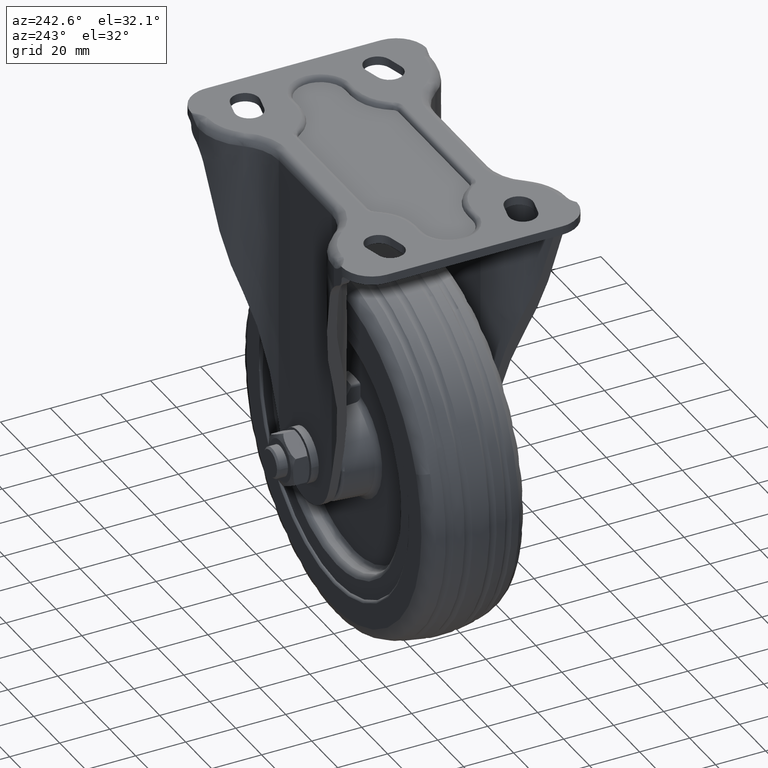
[diagram: clean part render]
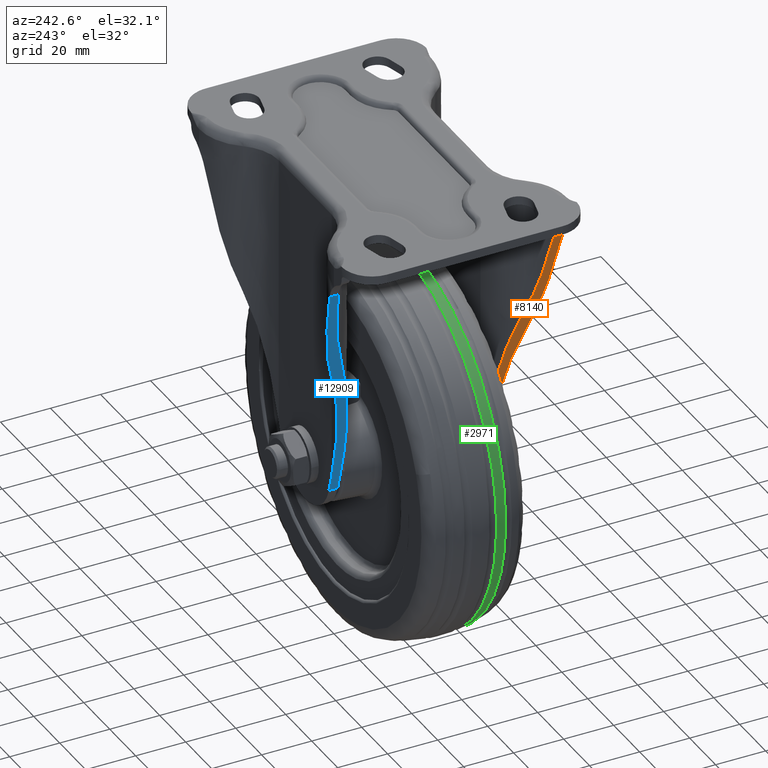
[diagram: same view with three faces highlighted in distinct colors, each labeled with its STEP entity id]
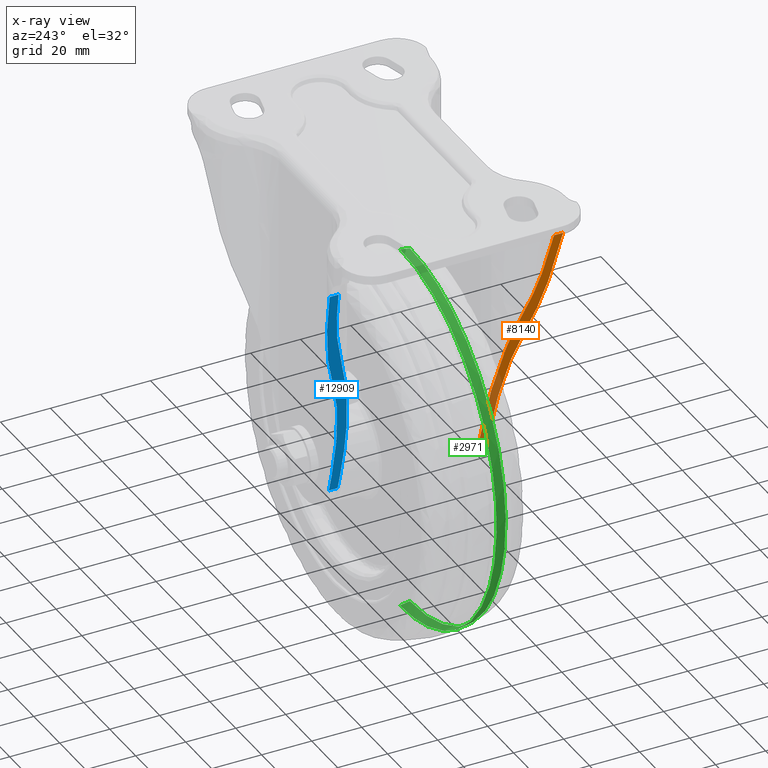
[diagram: x-ray of the same camera — body ghosted, the three highlighted faces saturated]
A machine part, auxiliary view with three faces highlighted in distinct colors.
The next image is the same camera in x-ray (body ghosted, the three faces saturated) — at least one of them is partly hidden behind the body in this view.
Their STEP definitions:

[orange] entity #8140 — the highlighted face is a freeform B-spline surface patch.
#8045=CARTESIAN_POINT('',(-49.594330046270152,-47.583668895438059,101.817506678719890));
#8046=CARTESIAN_POINT('',(-16.743273441587160,-47.583668895438059,-10.434331262693480));
#8047=CARTESIAN_POINT('',(-49.594330046270152,-27.068332063002170,101.817506678719890));
#8048=CARTESIAN_POINT('',(-16.743273441587160,-27.068332063002170,-10.434331262693480));
#8049=B_SPLINE_SURFACE_WITH_KNOTS('',1,1,((#8045,#8047),(#8046,#8048)),.UNSPECIFIED.,.F.,.F.,.U.,(2,2),(2,2),(0.0,116.960108760506100),(0.0,20.515336832435889),.UNSPECIFIED.);
#8050=CARTESIAN_POINT('',(-20.381176492475149,-31.500000000000000,1.996358825266940));
#8051=VERTEX_POINT('',#8050);
#8052=CARTESIAN_POINT('',(-34.609647070861350,-38.475000000000001,50.614946432323997));
#8053=VERTEX_POINT('',#8052);
#8054=CARTESIAN_POINT('',(-20.381176492475149,-31.500000000000000,1.996358825266929));
#8055=CARTESIAN_POINT('',(-29.205034215505297,-31.500000000000004,32.147420907162712));
#8056=CARTESIAN_POINT('',(-34.609647070861271,-38.474999999999987,50.614946432323890));
#8064=(BOUNDED_CURVE()B_SPLINE_CURVE(2,(#8054,#8055,#8056),.UNSPECIFIED.,.F.,.U.)CURVE()GEOMETRIC_REPRESENTATION_ITEM()QUASI_UNIFORM_CURVE()RATIONAL_B_SPLINE_CURVE((1.0,0.897914249803397,1.0))REPRESENTATION_ITEM(''));
#8065=EDGE_CURVE('',#8051,#8053,#8064,.T.);
#8066=ORIENTED_EDGE('',*,*,#8065,.T.);
#8067=CARTESIAN_POINT('',(-48.102458103967301,-46.652001458725898,96.719789578988198));
#8068=VERTEX_POINT('',#8067);
#8069=CARTESIAN_POINT('',(-48.102458103967301,-46.652001458725898,96.719789578988198));
#8070=CARTESIAN_POINT('',(-39.785597795967618,-45.154896835133819,68.301135006987423));
#8071=CARTESIAN_POINT('',(-34.609647070861399,-38.475000000000001,50.614946432324039));
#8079=(BOUNDED_CURVE()B_SPLINE_CURVE(2,(#8069,#8070,#8071),.UNSPECIFIED.,.F.,.U.)CURVE()GEOMETRIC_REPRESENTATION_ITEM()QUASI_UNIFORM_CURVE()RATIONAL_B_SPLINE_CURVE((1.0,0.933501997935313,1.0))REPRESENTATION_ITEM(''));
#8080=EDGE_CURVE('',#8068,#8053,#8079,.T.);
#8081=ORIENTED_EDGE('',*,*,#8080,.F.);
#8082=CARTESIAN_POINT('',(-48.102458103967301,-43.084777221980652,96.719789578988198));
#8083=VERTEX_POINT('',#8082);
#8084=CARTESIAN_POINT('',(-48.102458103967301,-46.652001458725898,96.719789578988198));
#8085=CARTESIAN_POINT('',(-48.102458103967301,-43.084777221980652,96.719789578988198));
#8086=QUASI_UNIFORM_CURVE('',1,(#8084,#8085),.UNSPECIFIED.,.F.,.U.);
#8087=EDGE_CURVE('',#8068,#8083,#8086,.T.);
#8088=ORIENTED_EDGE('',*,*,#8087,.T.);
#8089=CARTESIAN_POINT('',(-37.376294127769853,-36.331249999999997,60.068560689252202));
#8090=VERTEX_POINT('',#8089);
#8091=CARTESIAN_POINT('',(-48.102458103967301,-43.084777221980652,96.719789578988198));
#8092=CARTESIAN_POINT('',(-41.508084074730156,-41.663590289922517,74.186858956347322));
#8093=CARTESIAN_POINT('',(-37.376294127769917,-36.331250000000153,60.068560689252159));
#8101=(BOUNDED_CURVE()B_SPLINE_CURVE(2,(#8091,#8092,#8093),.UNSPECIFIED.,.F.,.U.)CURVE()GEOMETRIC_REPRESENTATION_ITEM()QUASI_UNIFORM_CURVE()RATIONAL_B_SPLINE_CURVE((1.0,0.939491211954343,1.0))REPRESENTATION_ITEM(''));
#8102=EDGE_CURVE('',#8083,#8090,#8101,.T.);
#8103=ORIENTED_EDGE('',*,*,#8102,.T.);
#8104=CARTESIAN_POINT('',(-20.381176492475149,-28.0,1.996358825266830));
#8105=VERTEX_POINT('',#8104);
#8106=CARTESIAN_POINT('',(-20.381176492475110,-28.0,1.996358825266796));
#8107=CARTESIAN_POINT('',(-30.920784328316707,-28.000000000000007,38.010127423086885));
#8108=CARTESIAN_POINT('',(-37.376294127769683,-36.331249999999990,60.068560689251633));
#8116=(BOUNDED_CURVE()B_SPLINE_CURVE(2,(#8106,#8107,#8108),.UNSPECIFIED.,.F.,.U.)CURVE()GEOMETRIC_REPRESENTATION_ITEM()QUASI_UNIFORM_CURVE()RATIONAL_B_SPLINE_CURVE((1.0,0.897914249803401,1.0))REPRESENTATION_ITEM(''));
#8117=EDGE_CURVE('',#8105,#8090,#8116,.T.);
#8118=ORIENTED_EDGE('',*,*,#8117,.F.);
#8119=CARTESIAN_POINT('',(-18.235146394250201,-28.0,-5.336611486835760));
#8120=VERTEX_POINT('',#8119);
#8121=CARTESIAN_POINT('',(-18.235146394250201,-28.0,-5.336611486835760));
#8122=CARTESIAN_POINT('',(-20.381176492475149,-28.0,1.996358825266830));
#8123=QUASI_UNIFORM_CURVE('',1,(#8121,#8122),.UNSPECIFIED.,.F.,.U.);
#8124=EDGE_CURVE('',#8120,#8105,#8123,.T.);
#8125=ORIENTED_EDGE('',*,*,#8124,.F.);
#8126=CARTESIAN_POINT('',(-18.235146394250201,-31.500000000000000,-5.336611486835760));
#8127=VERTEX_POINT('',#8126);
#8128=CARTESIAN_POINT('',(-18.235146394250201,-31.500000000000000,-5.336611486835760));
#8129=CARTESIAN_POINT('',(-18.235146394250201,-28.0,-5.336611486835760));
#8130=QUASI_UNIFORM_CURVE('',1,(#8128,#8129),.UNSPECIFIED.,.F.,.U.);
#8131=EDGE_CURVE('',#8127,#8120,#8130,.T.);
#8132=ORIENTED_EDGE('',*,*,#8131,.F.);
#8133=CARTESIAN_POINT('',(-20.381176492475149,-31.500000000000000,1.996358825266940));
#8134=CARTESIAN_POINT('',(-18.235146394250201,-31.500000000000000,-5.336611486835760));
#8135=QUASI_UNIFORM_CURVE('',1,(#8133,#8134),.UNSPECIFIED.,.F.,.U.);
#8136=EDGE_CURVE('',#8051,#8127,#8135,.T.);
#8137=ORIENTED_EDGE('',*,*,#8136,.F.);
#8138=EDGE_LOOP('',(#8066,#8081,#8088,#8103,#8118,#8125,#8132,#8137));
#8139=FACE_OUTER_BOUND('',#8138,.T.);
#8140=ADVANCED_FACE('',(#8139),#8049,.F.);

[blue] entity #12909 — the highlighted face is a freeform B-spline surface patch.
#8953=CARTESIAN_POINT('',(-37.376294127769853,36.331249999999997,60.068560689252003));
#8954=VERTEX_POINT('',#8953);
#8955=CARTESIAN_POINT('',(-48.102458103967301,43.084777221980652,96.719789578988198));
#8956=VERTEX_POINT('',#8955);
#8957=CARTESIAN_POINT('',(-37.376294127769853,36.331249999999997,60.068560689252003));
#8958=CARTESIAN_POINT('',(-41.508084000457508,41.663590194069009,74.186858702558197));
#8959=CARTESIAN_POINT('',(-48.102457894710817,43.084777176882717,96.719789640228171));
#8967=(BOUNDED_CURVE()B_SPLINE_CURVE(2,(#8957,#8958,#8959),.UNSPECIFIED.,.F.,.U.)CURVE()GEOMETRIC_REPRESENTATION_ITEM()QUASI_UNIFORM_CURVE()RATIONAL_B_SPLINE_CURVE((1.0,0.939491213936277,1.0))REPRESENTATION_ITEM(''));
#8968=EDGE_CURVE('',#8954,#8956,#8967,.T.);
#9034=CARTESIAN_POINT('',(-20.381176492475149,28.0,1.996358825266940));
#9035=VERTEX_POINT('',#9034);
#9036=CARTESIAN_POINT('',(-37.376294127769853,36.331249999999997,60.068560689252003));
#9037=CARTESIAN_POINT('',(-30.920784328316838,28.0,38.010127423087290));
#9038=CARTESIAN_POINT('',(-20.381176492475149,28.0,1.996358825266944));
#9046=(BOUNDED_CURVE()B_SPLINE_CURVE(2,(#9036,#9037,#9038),.UNSPECIFIED.,.F.,.U.)CURVE()GEOMETRIC_REPRESENTATION_ITEM()QUASI_UNIFORM_CURVE()RATIONAL_B_SPLINE_CURVE((1.0,0.897914249803397,1.0))REPRESENTATION_ITEM(''));
#9047=EDGE_CURVE('',#8954,#9035,#9046,.T.);
#9077=CARTESIAN_POINT('',(-18.235146394250201,28.0,-5.336611486835760));
#9078=VERTEX_POINT('',#9077);
#9079=CARTESIAN_POINT('',(-18.235146394250201,28.0,-5.336611486835760));
#9080=CARTESIAN_POINT('',(-20.381176492475149,28.0,1.996358825266940));
#9081=QUASI_UNIFORM_CURVE('',1,(#9079,#9080),.UNSPECIFIED.,.F.,.U.);
#9082=EDGE_CURVE('',#9078,#9035,#9081,.T.);
#12825=CARTESIAN_POINT('',(-18.235146394250201,31.500000000000000,-5.336611486835760));
#12826=VERTEX_POINT('',#12825);
#12827=CARTESIAN_POINT('',(-18.235146394250201,28.0,-5.336611486835760));
#12828=CARTESIAN_POINT('',(-18.235146394250201,31.500000000000000,-5.336611486835760));
#12829=QUASI_UNIFORM_CURVE('',1,(#12827,#12828),.UNSPECIFIED.,.F.,.U.);
#12830=EDGE_CURVE('',#9078,#12826,#12829,.T.);
#12856=CARTESIAN_POINT('',(-49.594330046270152,27.068332563287839,101.817506678719890));
#12857=CARTESIAN_POINT('',(-16.743273441587160,27.068332563287839,-10.434331262693480));
#12858=CARTESIAN_POINT('',(-49.594330046270152,47.583669395723717,101.817506678719890));
#12859=CARTESIAN_POINT('',(-16.743273441587160,47.583669395723717,-10.434331262693480));
#12860=B_SPLINE_SURFACE_WITH_KNOTS('',1,1,((#12856,#12858),(#12857,#12859)),.UNSPECIFIED.,.F.,.F.,.U.,(2,2),(2,2),(0.0,116.960108760506100),(0.0,20.515336832435889),.UNSPECIFIED.);
#12861=CARTESIAN_POINT('',(-34.609647070861449,38.475000000000001,50.614946432324487));
#12862=VERTEX_POINT('',#12861);
#12863=CARTESIAN_POINT('',(-20.381176492475149,31.500000000000000,1.996358825266830));
#12864=VERTEX_POINT('',#12863);
#12865=CARTESIAN_POINT('',(-34.609647070861449,38.475000000000001,50.614946432324487));
#12866=CARTESIAN_POINT('',(-29.205034215505474,31.499999999999996,32.147420907163337));
#12867=CARTESIAN_POINT('',(-20.381176492475149,31.500000000000000,1.996358825266944));
#12875=(BOUNDED_CURVE()B_SPLINE_CURVE(2,(#12865,#12866,#12867),.UNSPECIFIED.,.F.,.U.)CURVE()GEOMETRIC_REPRESENTATION_ITEM()QUASI_UNIFORM_CURVE()RATIONAL_B_SPLINE_CURVE((1.0,0.897914249803395,1.0))REPRESENTATION_ITEM(''));
#12876=EDGE_CURVE('',#12862,#12864,#12875,.T.);
#12877=ORIENTED_EDGE('',*,*,#12876,.T.);
#12878=CARTESIAN_POINT('',(-18.235146394250201,31.500000000000000,-5.336611486835760));
#12879=CARTESIAN_POINT('',(-20.381176492475149,31.500000000000000,1.996358825266830));
#12880=QUASI_UNIFORM_CURVE('',1,(#12878,#12879),.UNSPECIFIED.,.F.,.U.);
#12881=EDGE_CURVE('',#12826,#12864,#12880,.T.);
#12882=ORIENTED_EDGE('',*,*,#12881,.F.);
#12883=ORIENTED_EDGE('',*,*,#12830,.F.);
#12884=ORIENTED_EDGE('',*,*,#9082,.T.);
#12885=ORIENTED_EDGE('',*,*,#9047,.F.);
#12886=ORIENTED_EDGE('',*,*,#8968,.T.);
#12887=CARTESIAN_POINT('',(-48.102458103967301,46.652001458725898,96.719789578988198));
#12888=VERTEX_POINT('',#12887);
#12889=CARTESIAN_POINT('',(-48.102458103967301,43.084777221980652,96.719789578988198));
#12890=CARTESIAN_POINT('',(-48.102458103967301,46.652001458725898,96.719789578988198));
#12891=QUASI_UNIFORM_CURVE('',1,(#12889,#12890),.UNSPECIFIED.,.F.,.U.);
#12892=EDGE_CURVE('',#8956,#12888,#12891,.T.);
#12893=ORIENTED_EDGE('',*,*,#12892,.T.);
#12894=CARTESIAN_POINT('',(-34.609647070861449,38.475000000000001,50.614946432324487));
#12895=CARTESIAN_POINT('',(-39.785597721245566,45.154896738700209,68.301134751662673));
#12896=CARTESIAN_POINT('',(-48.102457894710810,46.652001421058003,96.719789640228143));
#12904=(BOUNDED_CURVE()B_SPLINE_CURVE(2,(#12894,#12895,#12896),.UNSPECIFIED.,.F.,.U.)CURVE()GEOMETRIC_REPRESENTATION_ITEM()QUASI_UNIFORM_CURVE()RATIONAL_B_SPLINE_CURVE((1.0,0.933501999668031,1.0))REPRESENTATION_ITEM(''));
#12905=EDGE_CURVE('',#12862,#12888,#12904,.T.);
#12906=ORIENTED_EDGE('',*,*,#12905,.F.);
#12907=EDGE_LOOP('',(#12877,#12882,#12883,#12884,#12885,#12886,#12893,#12906));
#12908=FACE_OUTER_BOUND('',#12907,.T.);
#12909=ADVANCED_FACE('',(#12908),#12860,.F.);

[green] entity #2971 — the highlighted face is a freeform B-spline surface patch.
#2694=CARTESIAN_POINT('',(-32.313130422981637,-10.319397828722860,66.487175382998174));
#2695=VERTEX_POINT('',#2694);
#2696=CARTESIAN_POINT('',(0.0,-10.319395875026940,-73.923527432919201));
#2697=VERTEX_POINT('',#2696);
#2698=CARTESIAN_POINT('',(-32.313130422981637,-10.319397828722860,66.487175382998174));
#2699=CARTESIAN_POINT('',(-35.572561278667600,-10.319397751866401,64.903305508976686));
#2700=CARTESIAN_POINT('',(-40.959746998033722,-10.319397615973971,61.775907020564539));
#2701=CARTESIAN_POINT('',(-47.449894923314311,-10.319397431618389,56.821657093999697));
#2702=CARTESIAN_POINT('',(-53.740502634567413,-10.319397235767729,51.033054722415002));
#2703=CARTESIAN_POINT('',(-59.554266707877147,-10.319397029230720,44.215488094644670));
#2704=CARTESIAN_POINT('',(-64.685520351562005,-10.319396810577789,36.107906924867990));
#2705=CARTESIAN_POINT('',(-68.473132589959931,-10.319396617360169,28.294107697890581));
#2706=CARTESIAN_POINT('',(-71.464638078494190,-10.319396423019480,19.723464221002271));
#2707=CARTESIAN_POINT('',(-73.203255693384392,-10.319396250885630,11.339920868729211));
#2708=CARTESIAN_POINT('',(-73.982967911947227,-10.319396095516330,3.086291244583669));
#2709=CARTESIAN_POINT('',(-73.933845331358853,-10.319395942914150,-5.729058070290344));
#2710=CARTESIAN_POINT('',(-72.646361734801744,-10.319395805899200,-14.725152515521041));
#2711=CARTESIAN_POINT('',(-70.276848298095629,-10.319395691784649,-23.345743315710720));
#2712=CARTESIAN_POINT('',(-67.131405641601788,-10.319395598549240,-31.440773215317648));
#2713=CARTESIAN_POINT('',(-63.092347423454392,-10.319395530827149,-38.846212111338687));
#2714=CARTESIAN_POINT('',(-58.459271869207008,-10.319395486791169,-45.406548296807209));
#2715=CARTESIAN_POINT('',(-53.510323017312068,-10.319395460300401,-51.232970984806627));
#2716=CARTESIAN_POINT('',(-46.511999653794881,-10.319395451898560,-57.801583926432109));
#2717=CARTESIAN_POINT('',(-37.123944846816002,-10.319395480581379,-64.316456361141164));
#2718=CARTESIAN_POINT('',(-27.493463196291941,-10.319395547147010,-68.864334801831760));
#2719=CARTESIAN_POINT('',(-19.464753196590038,-10.319395624286511,-71.411497716905345));
#2720=CARTESIAN_POINT('',(-10.871423524486250,-10.319395720750171,-73.338756143432605));
#2721=CARTESIAN_POINT('',(-4.529848155820318,-10.319395806496480,-73.924027686811485));
#2722=CARTESIAN_POINT('',(0.0,-10.319395875026940,-73.923527432919201));
#2723=B_SPLINE_CURVE_WITH_KNOTS('',3,(#2698,#2699,#2700,#2701,#2702,#2703,#2704,#2705,#2706,#2707,#2708,#2709,#2710,#2711,#2712,#2713,#2714,#2715,#2716,#2717,#2718,#2719,#2720,#2721,#2722),.UNSPECIFIED.,.F.,.U.,(4,1,1,1,1,1,1,1,1,1,1,1,1,1,1,1,1,1,1,1,1,1,4),(0.000000146836015,10.871630948822510,18.637088026752281,24.461178347018290,36.497666622251558,45.427911791582567,53.193436417763849,62.512000046615157,72.607070391511613,78.819462203578681,87.361192886640865,99.009400224427978,105.998407158469110,114.152125757497100,125.023778704626200,131.236142663919990,138.225049422636290,147.931880932301710,159.968383127768900,172.393071319368400,179.770266053880310,185.206161106064910,198.795583083903010),.UNSPECIFIED.);
#2724=EDGE_CURVE('',#2695,#2697,#2723,.T.);
#2812=CARTESIAN_POINT('',(0.0,-10.319408164911909,73.923494840621004));
#2813=VERTEX_POINT('',#2812);
#2814=CARTESIAN_POINT('',(0.0,-10.319408164911909,73.923494840621004));
#2815=CARTESIAN_POINT('',(-17.012235944854485,-10.319403305891795,73.923493156986794));
#2816=CARTESIAN_POINT('',(-32.313130422981637,-10.319397828722856,66.487175382998174));
#2824=(BOUNDED_CURVE()B_SPLINE_CURVE(2,(#2814,#2815,#2816),.UNSPECIFIED.,.F.,.U.)B_SPLINE_CURVE_WITH_KNOTS((3,3),(0.500000000000000,0.574283291049692),.UNSPECIFIED.)CURVE()GEOMETRIC_REPRESENTATION_ITEM()RATIONAL_B_SPLINE_CURVE((1.0,0.912971711121597,0.877661403941683))REPRESENTATION_ITEM(''));
#2825=EDGE_CURVE('',#2813,#2695,#2824,.T.);
#2862=CARTESIAN_POINT('',(2.065500264737533,-10.514184736300940,73.882005409665467));
#2863=CARTESIAN_POINT('',(2.078447966858092,-8.361007636033252,74.345138921996949));
#2864=CARTESIAN_POINT('',(2.086052728038471,-6.175448213238670,74.617157827213987));
#2865=CARTESIAN_POINT('',(1.038764610581094,-10.514184736300942,73.882005409665467));
#2866=CARTESIAN_POINT('',(1.045276163729161,-8.361007636033252,74.345138921996949));
#2867=CARTESIAN_POINT('',(1.049100688431946,-6.175448213238670,74.617157827214001));
#2868=CARTESIAN_POINT('',(-73.882020409665316,-10.514184736300939,73.882005409665467));
#2869=CARTESIAN_POINT('',(-74.345153921996797,-8.361007636033248,74.345138921996963));
#2870=CARTESIAN_POINT('',(-74.617172827213835,-6.175448213238666,74.617157827214029));
#2871=CARTESIAN_POINT('',(-73.882020409665316,-10.514184736300942,-0.000014999999846));
#2872=CARTESIAN_POINT('',(-74.345153921996797,-8.361007636033252,-0.000014999999846));
#2873=CARTESIAN_POINT('',(-74.617172827213849,-6.175448213238670,-0.000014999999846));
#2874=CARTESIAN_POINT('',(-73.882020409665316,-10.514184736300939,-73.882035409665164));
#2875=CARTESIAN_POINT('',(-74.345153921996797,-8.361007636033248,-74.345168921996660));
#2876=CARTESIAN_POINT('',(-74.617172827213835,-6.175448213238666,-74.617187827213698));
#2877=CARTESIAN_POINT('',(1.038764610581102,-10.514184736300942,-73.882035409665178));
#2878=CARTESIAN_POINT('',(1.045276163729169,-8.361007636033252,-74.345168921996660));
#2879=CARTESIAN_POINT('',(1.049100688431954,-6.175448213238670,-74.617187827213712));
#2880=CARTESIAN_POINT('',(2.065500264737548,-10.514184736300944,-73.882035409665164));
#2881=CARTESIAN_POINT('',(2.078447966858108,-8.361007636033252,-74.345168921996660));
#2882=CARTESIAN_POINT('',(2.086052728038488,-6.175448213238671,-74.617187827213712));
#2890=(BOUNDED_SURFACE()B_SPLINE_SURFACE(2,2,((#2862,#2865,#2868,#2871,#2874,#2877,#2880),(#2863,#2866,#2869,#2872,#2875,#2878,#2881),(#2864,#2867,#2870,#2873,#2876,#2879,#2882)),.UNSPECIFIED.,.F.,.F.,.U.)B_SPLINE_SURFACE_WITH_KNOTS((3,3),(3,1,2,1,3),(0.0,4.416905722027062),(0.0,2.472595597677534,126.102375481554200,249.732155365430710,252.204750963108300),.UNSPECIFIED.)GEOMETRIC_REPRESENTATION_ITEM()RATIONAL_B_SPLINE_SURFACE(((0.903468058893364,0.898236951768229,0.631450488386353,0.893005844643094,0.631450488386353,0.898236951768229,0.903468058893364),(0.899256214441212,0.894049494021624,0.628506752622659,0.888842773602037,0.628506752622659,0.894049494021624,0.899256214441212),(0.896800667028857,0.891608164302345,0.626790525250232,0.886415661575833,0.626790525250232,0.891608164302345,0.896800667028857)))REPRESENTATION_ITEM('')SURFACE());
#2891=CARTESIAN_POINT('',(0.0,-6.374425088454839,74.591987427727162));
#2892=VERTEX_POINT('',#2891);
#2893=CARTESIAN_POINT('',(0.0,-10.319408164911911,73.923494840621004));
#2894=CARTESIAN_POINT('',(0.0,-8.360301279933026,74.336728144012440));
#2895=CARTESIAN_POINT('',(0.0,-6.374425088454839,74.591987427727162));
#2903=(BOUNDED_CURVE()B_SPLINE_CURVE(2,(#2893,#2894,#2895),.UNSPECIFIED.,.F.,.U.)B_SPLINE_CURVE_WITH_KNOTS((3,3),(0.452231879356565,0.470691105434153),.UNSPECIFIED.)CURVE()GEOMETRIC_REPRESENTATION_ITEM()RATIONAL_B_SPLINE_CURVE((0.892631309768631,0.888918031346479,0.886639689969373))REPRESENTATION_ITEM(''));
#2904=EDGE_CURVE('',#2813,#2892,#2903,.T.);
#2905=ORIENTED_EDGE('',*,*,#2904,.T.);
#2906=CARTESIAN_POINT('',(-13.055320460069170,-6.374424603800581,73.440610350556170));
#2907=VERTEX_POINT('',#2906);
#2908=CARTESIAN_POINT('',(0.0,-6.374425088454839,74.591987427727162));
#2909=CARTESIAN_POINT('',(-6.578431463463376,-6.374424846127687,74.591987485137210));
#2910=CARTESIAN_POINT('',(-13.055320460069179,-6.374424603800581,73.440610350556170));
#2918=(BOUNDED_CURVE()B_SPLINE_CURVE(2,(#2908,#2909,#2910),.UNSPECIFIED.,.F.,.U.)B_SPLINE_CURVE_WITH_KNOTS((3,3),(0.500000000000000,0.530081746735344),.UNSPECIFIED.)CURVE()GEOMETRIC_REPRESENTATION_ITEM()RATIONAL_B_SPLINE_CURVE((1.0,0.964757041484616,0.937995440987344))REPRESENTATION_ITEM(''));
#2919=EDGE_CURVE('',#2892,#2907,#2918,.T.);
#2920=ORIENTED_EDGE('',*,*,#2919,.T.);
#2921=CARTESIAN_POINT('',(0.0,-6.374425088460612,-74.592017427726091));
#2922=VERTEX_POINT('',#2921);
#2923=CARTESIAN_POINT('',(-13.055320460069170,-6.374424603800581,73.440610350556170));
#2924=CARTESIAN_POINT('',(-15.465836689430789,-6.374424604502002,73.012120251425344));
#2925=CARTESIAN_POINT('',(-20.806928144835659,-6.374424606946050,71.788773086283570));
#2926=CARTESIAN_POINT('',(-28.982262380516438,-6.374424613855857,68.940865343575268));
#2927=CARTESIAN_POINT('',(-37.647271053801788,-6.374424625311493,64.650512468304470));
#2928=CARTESIAN_POINT('',(-45.189725564836230,-6.374424639662865,59.567806709165090));
#2929=CARTESIAN_POINT('',(-51.741084511521358,-6.374424656143955,53.916985180494052));
#2930=CARTESIAN_POINT('',(-57.670728729710007,-6.374424674924081,47.613296183314823));
#2931=CARTESIAN_POINT('',(-62.520667869821402,-6.374424695131636,40.965408409495737));
#2932=CARTESIAN_POINT('',(-66.461166739643971,-6.374424716350863,34.086449415924747));
#2933=CARTESIAN_POINT('',(-70.011455268356144,-6.374424740450476,26.355133817425411));
#2934=CARTESIAN_POINT('',(-73.044493775164284,-6.374424771420907,16.554605400446270));
#2935=CARTESIAN_POINT('',(-74.512992774438601,-6.374424803970622,6.405945242001455));
#2936=CARTESIAN_POINT('',(-74.692778440175360,-6.374424834362594,-2.964942960285858));
#2937=CARTESIAN_POINT('',(-73.801391049750848,-6.374424865425369,-12.447756830934670));
#2938=CARTESIAN_POINT('',(-71.575041638129150,-6.374424896181603,-21.718608561850381));
#2939=CARTESIAN_POINT('',(-68.092420937312127,-6.374424926957275,-30.884588671910379));
#2940=CARTESIAN_POINT('',(-64.212146600946184,-6.374424952175222,-38.304571541814511));
#2941=CARTESIAN_POINT('',(-59.730156544351537,-6.374424974714127,-44.847383334087411));
#2942=CARTESIAN_POINT('',(-54.590033174238101,-6.374424996407858,-51.070965459146102));
#2943=CARTESIAN_POINT('',(-48.770632655249933,-6.374425016312991,-56.685453453079987));
#2944=CARTESIAN_POINT('',(-42.206776900501062,-6.374425034264712,-61.632158540817429));
#2945=CARTESIAN_POINT('',(-35.092730560999023,-6.374425050574685,-66.025140449017314));
#2946=CARTESIAN_POINT('',(-27.887002522933191,-6.374425063500680,-69.368450458081341));
#2947=CARTESIAN_POINT('',(-20.221327662810531,-6.374425073909791,-71.896446681130598));
#2948=CARTESIAN_POINT('',(-11.521409403300890,-6.374425083071323,-73.949217337972371));
#2949=CARTESIAN_POINT('',(-4.608676655967923,-6.374425087141939,-74.592560739609468));
#2950=CARTESIAN_POINT('',(0.0,-6.374425088460612,-74.592017427726091));
#2951=B_SPLINE_CURVE_WITH_KNOTS('',3,(#2923,#2924,#2925,#2926,#2927,#2928,#2929,#2930,#2931,#2932,#2933,#2934,#2935,#2936,#2937,#2938,#2939,#2940,#2941,#2942,#2943,#2944,#2945,#2946,#2947,#2948,#2949,#2950),.UNSPECIFIED.,.F.,.U.,(4,1,1,1,1,1,1,1,1,1,1,1,1,1,1,1,1,1,1,1,1,1,1,1,1,4),(0.000000055295715,7.344927071425218,16.418296893495150,25.923594369657931,36.293082979529203,43.638131433429983,51.847292161024967,62.216752265522757,68.265648030054479,75.610698975962379,87.708390662274439,98.942012757290030,106.286768510062500,115.792171433066000,127.457905366869800,134.802881307458900,145.172363777183390,152.517407013837700,158.566283963873500,169.367823821981400,176.712867765145090,183.193804563095800,194.427417738077790,200.476252331872300,207.389175965625410,221.215085929826810),.UNSPECIFIED.);
#2952=EDGE_CURVE('',#2907,#2922,#2951,.T.);
#2953=ORIENTED_EDGE('',*,*,#2952,.T.);
#2954=CARTESIAN_POINT('',(0.0,-10.319395875026940,-73.923527432919201));
#2955=CARTESIAN_POINT('',(0.0,-8.360295041040544,-74.336758945943473));
#2956=CARTESIAN_POINT('',(0.0,-6.374425088460612,-74.592017427726091));
#2964=(BOUNDED_CURVE()B_SPLINE_CURVE(2,(#2954,#2955,#2956),.UNSPECIFIED.,.F.,.U.)B_SPLINE_CURVE_WITH_KNOTS((3,3),(0.452231937497709,0.470691105434127),.UNSPECIFIED.)CURVE()GEOMETRIC_REPRESENTATION_ITEM()RATIONAL_B_SPLINE_CURVE((0.892631286377171,0.888918024170377,0.886639689969380))REPRESENTATION_ITEM(''));
#2965=EDGE_CURVE('',#2697,#2922,#2964,.T.);
#2966=ORIENTED_EDGE('',*,*,#2965,.F.);
#2967=ORIENTED_EDGE('',*,*,#2724,.F.);
#2968=ORIENTED_EDGE('',*,*,#2825,.F.);
#2969=EDGE_LOOP('',(#2905,#2920,#2953,#2966,#2967,#2968));
#2970=FACE_OUTER_BOUND('',#2969,.T.);
#2971=ADVANCED_FACE('',(#2970),#2890,.T.);